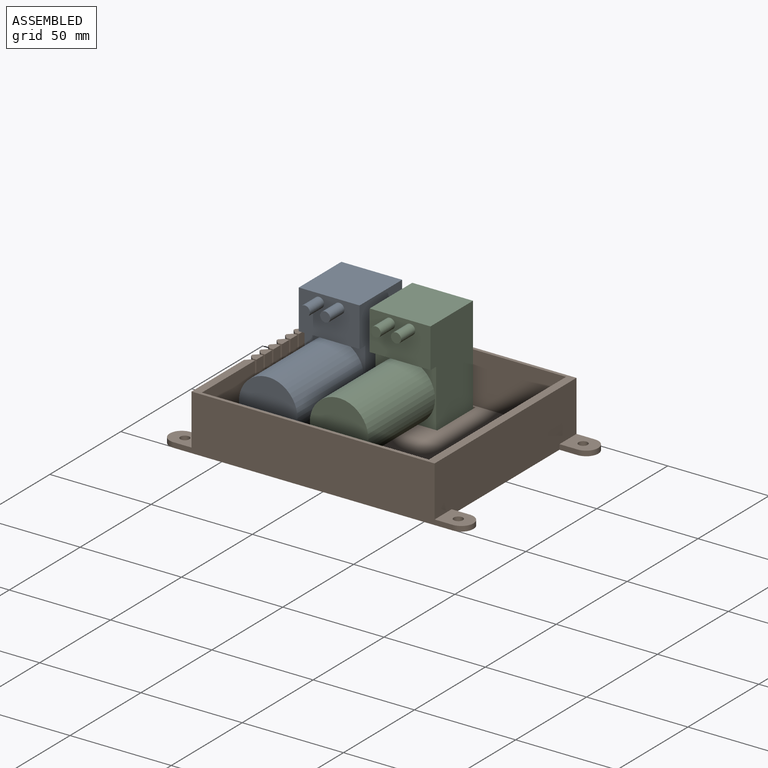
[diagram: assembled view]
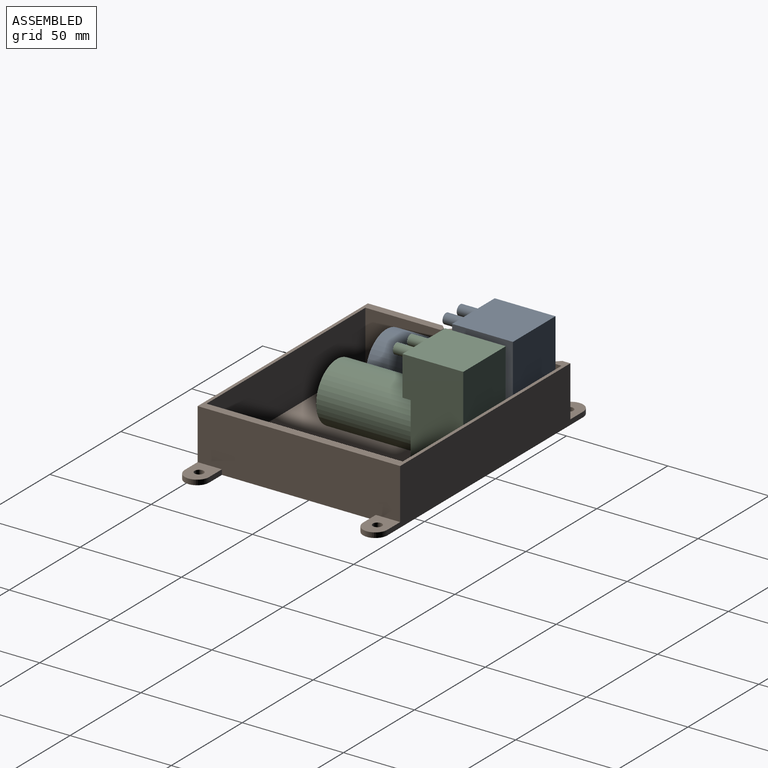
[diagram: assembled view, second angle]
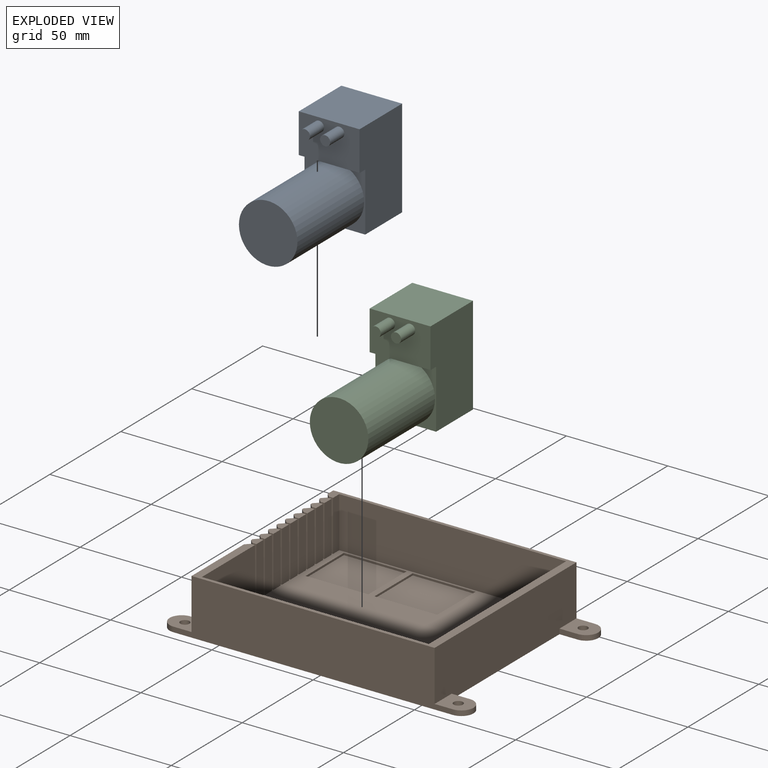
[diagram: exploded view]
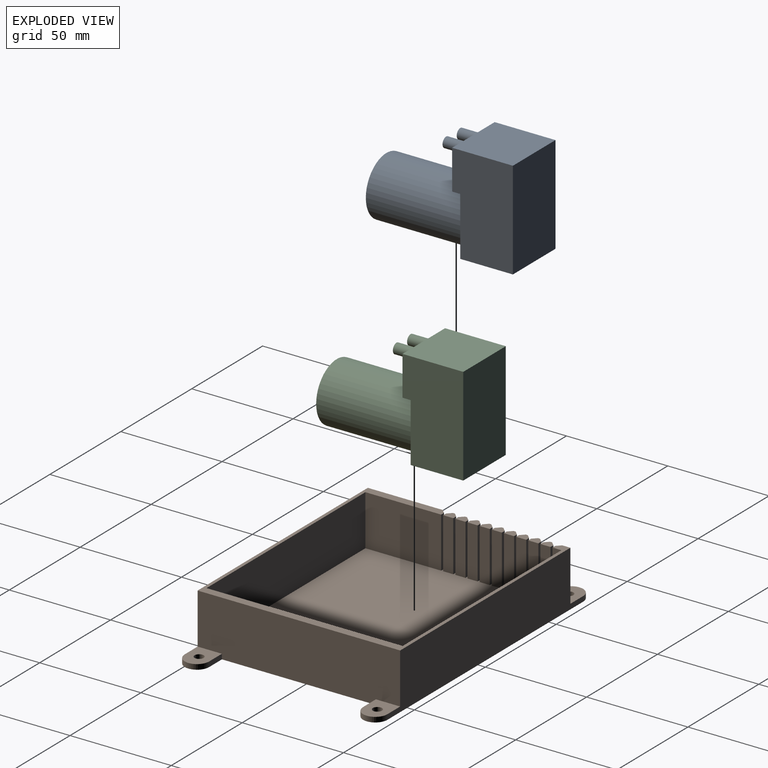
[diagram: exploded view, second angle]
ASSEMBLY  parts=3 mates=2
PART A: 14 faces, bbox 73x30x48.5 mm
  f0: plane 30x19.5mm, normal (-1,0,0), area 545.7mm2, adj f1,f3,f4,f7,f10,f12
  f1: plane 48.5x30mm, normal (0,-1,0), area 1339mm2, adj f0,f2,f4,f5,f6,f7
  f2: plane 48.5x30mm, normal (1,0,0), area 1455mm2, adj f1,f3,f4,f5
  f3: plane 48.5x30mm, normal (0,1,0), area 1339mm2, adj f0,f2,f4,f5,f6,f7
  f4: plane 30x30mm, normal (0,0,1), area 900mm2, adj f0,f1,f2,f3
  f5: plane 30x26mm, normal (0,0,-1), area 780mm2, adj f1,f2,f3,f6
  f6: plane 30x29mm, normal (-1,0,0), area 214mm2, adj f1,f3,f5,f7,f8
  f7: plane 30x4mm, normal (0,0,-1), area 120mm2, adj f0,f1,f3,f6
  f8: cylinder r=14.45mm len=47mm, axis (1,0,0), area 4267.2mm2, adj f6,f9
  f9: plane 28.9x28.9mm, normal (-1,0,0), area 656mm2, adj f8
  f10: cylinder r=2.5mm len=10mm, axis (1,0,0), area 157.1mm2, adj f0,f11
  f11: plane 5x5mm, normal (-1,0,0), area 19.6mm2, adj f10
  f12: cylinder r=2.5mm len=10mm, axis (1,0,0), area 157.1mm2, adj f0,f13
  f13: plane 5x5mm, normal (-1,0,0), area 19.6mm2, adj f12
PART B: 97 faces, bbox 150x100x27.5 mm
  f0: plane 5x4mm, normal (0,0,1), area 16mm2, adj f10,f13,f91,f92,f93,f94
  f1: plane 5x4mm, normal (0,0,1), area 16mm2, adj f11,f14,f87,f88,f89,f90
  f2: plane 5x4mm, normal (0,0,1), area 16mm2, adj f11,f15,f83,f84,f85,f86
  f3: plane 5x4mm, normal (0,0,1), area 16mm2, adj f11,f16,f79,f80,f81,f82
  f4: plane 5x4mm, normal (0,0,1), area 16mm2, adj f11,f17,f75,f76,f77,f78
  f5: plane 5x4mm, normal (0,0,1), area 16mm2, adj f11,f18,f71,f72,f73,f74
  f6: plane 5x4mm, normal (0,0,1), area 16mm2, adj f11,f19,f67,f68,f69,f70
  f7: plane 5x4mm, normal (0,0,1), area 16mm2, adj f11,f20,f63,f64,f65,f66
  f8: plane 5x4mm, normal (0,0,1), area 16mm2, adj f11,f21,f59,f60,f61,f62
  f9: plane 120x100mm, normal (0,0,1), area 934.4mm2, adj f11,f12,f22,f28,f30,f32,f43,f44
  f10: plane 25x1mm, normal (-1,0,0), area 25mm2, adj f0,f23,f91,f93
  f11: plane 88x27.5mm, normal (-1,0,0), area 1315mm2, adj f1,f2,f3,f4,f5,f6,f7,f8
  f12: plane 25x4mm, normal (-1,0,0), area 100mm2, adj f9,f23,f32,f95
  f13: plane 25x5mm, normal (1,0,0), area 125mm2, adj f0,f23,f92,f94
  f14: plane 25x5mm, normal (1,0,0), area 125mm2, adj f1,f23,f88,f89
  f15: plane 25x5mm, normal (1,0,0), area 125mm2, adj f2,f23,f84,f85
  f16: plane 25x5mm, normal (1,0,0), area 125mm2, adj f3,f23,f80,f81
  f17: plane 25x5mm, normal (1,0,0), area 125mm2, adj f4,f23,f76,f77
  f18: plane 25x5mm, normal (1,0,0), area 125mm2, adj f5,f23,f72,f73
  f19: plane 25x5mm, normal (1,0,0), area 125mm2, adj f6,f23,f68,f69
  f20: plane 25x5mm, normal (1,0,0), area 125mm2, adj f7,f23,f64,f65
  f21: plane 25x5mm, normal (1,0,0), area 125mm2, adj f8,f23,f60,f61
  f22: plane 37.4x25mm, normal (1,0,0), area 935mm2, adj f9,f23,f46,f57
  f23: plane 131x98.4mm, normal (0,0,1), area 9396.2mm2, adj f10,f11,f12,f13,f14,f15,f16,f17
  f24: plane 15x12mm, normal (0,0,1), area 148.6mm2, adj f30,f31,f32,f34,f41
  f25: plane 15x12mm, normal (0,0,1), area 148.6mm2, adj f28,f29,f30,f33,f40
  f26: plane 9x2.5mm, normal (0,-1,0), area 22.5mm2, adj f11,f23,f38,f42
  f27: plane 9x2.5mm, normal (0,1,0), area 22.5mm2, adj f11,f37,f38,f39
  f28: plane 138x27.5mm, normal (0,-1,0), area 3345mm2, adj f9,f11,f25,f30,f37,f38,f39,f40
  f29: plane 9x2.5mm, normal (0,1,0), area 22.5mm2, adj f25,f30,f38,f40
  f30: plane 100x27.5mm, normal (1,0,0), area 2690mm2, adj f9,f24,f25,f28,f29,f31,f32,f38
  f31: plane 9x2.5mm, normal (0,-1,0), area 22.5mm2, adj f24,f30,f38,f41
  f32: plane 138x27.5mm, normal (0,1,0), area 3345mm2, adj f9,f12,f23,f24,f30,f38,f41,f42
  f33: cylinder r=2.25mm len=4.5mm, axis (0,0,-1), area 35.3mm2, adj f25,f38
  f34: cylinder r=2.25mm len=4.5mm, axis (0,0,-1), area 35.3mm2, adj f24,f38
  f35: cylinder r=2.25mm len=4.5mm, axis (0,0,-1), area 35.3mm2, adj f23,f38
  f36: cylinder r=2.25mm len=4.5mm, axis (0,0,-1), area 35.3mm2, adj f37,f38
  f37: plane 15x12mm, normal (0,0,1), area 148.6mm2, adj f11,f27,f28,f36,f39
  f38: plane 150x100mm, normal (0,0,-1), area 12594.6mm2, adj f11,f26,f27,f28,f29,f30,f31,f32
  f39: cylinder r=6mm len=12mm, axis (0,0,-1), area 47.1mm2, adj f27,f28,f37,f38
  f40: cylinder r=6mm len=12mm, axis (0,0,1), area 47.1mm2, adj f25,f28,f29,f38
  f41: cylinder r=6mm len=12mm, axis (0,0,-1), area 47.1mm2, adj f24,f31,f32,f38
  f42: cylinder r=6mm len=12mm, axis (0,0,1), area 47.1mm2, adj f23,f26,f32,f38
  f43: plane 25x4.4mm, normal (1,0,0), area 110mm2, adj f9,f23,f44,f96
  f44: plane 112x25mm, normal (0,-1,0), area 2800mm2, adj f9,f23,f43,f45
  f45: plane 96.8x25mm, normal (-1,0,0), area 2420mm2, adj f9,f23,f44,f46
  f46: plane 112x25mm, normal (0,1,0), area 2800mm2, adj f9,f22,f23,f45
  f47: plane 31x1mm, normal (0,-1,0), area 31mm2, adj f23,f48,f50,f51
  f48: plane 27x1mm, normal (1,0,0), area 27mm2, adj f23,f47,f49,f51
  f49: plane 31x1mm, normal (0,1,0), area 31mm2, adj f23,f48,f50,f51
  f50: plane 27x1mm, normal (-1,0,0), area 27mm2, adj f23,f47,f49,f51
  f51: plane 31x27mm, normal (0,0,1), area 837mm2, adj f47,f48,f49,f50
  f52: plane 31x1mm, normal (0,-1,0), area 31mm2, adj f23,f53,f55,f56
  f53: plane 27x1mm, normal (1,0,0), area 27mm2, adj f23,f52,f54,f56
  f54: plane 31x1mm, normal (0,1,0), area 31mm2, adj f23,f53,f55,f56
  f55: plane 27x1mm, normal (-1,0,0), area 27mm2, adj f23,f52,f54,f56
  f56: plane 31x27mm, normal (0,0,1), area 837mm2, adj f52,f53,f54,f55
  f57: plane 25x2mm, normal (0,1,0), area 50mm2, adj f9,f22,f23,f58
  f58: plane 25x2mm, normal (-0.71,0.71,0), area 70.7mm2, adj f9,f11,f23,f57
  f59: plane 25x2mm, normal (-0.71,-0.71,0), area 70.7mm2, adj f8,f11,f23,f60
  f60: plane 25x2mm, normal (0,-1,0), area 50mm2, adj f8,f21,f23,f59
  f61: plane 25x2mm, normal (0,1,0), area 50mm2, adj f8,f21,f23,f62
  f62: plane 25x2mm, normal (-0.71,0.71,0), area 70.7mm2, adj f8,f11,f23,f61
  f63: plane 25x2mm, normal (-0.71,-0.71,0), area 70.7mm2, adj f7,f11,f23,f64
  f64: plane 25x2mm, normal (0,-1,0), area 50mm2, adj f7,f20,f23,f63
  f65: plane 25x2mm, normal (0,1,0), area 50mm2, adj f7,f20,f23,f66
  f66: plane 25x2mm, normal (-0.71,0.71,0), area 70.7mm2, adj f7,f11,f23,f65
  f67: plane 25x2mm, normal (-0.71,-0.71,0), area 70.7mm2, adj f6,f11,f23,f68
  f68: plane 25x2mm, normal (0,-1,0), area 50mm2, adj f6,f19,f23,f67
  f69: plane 25x2mm, normal (0,1,0), area 50mm2, adj f6,f19,f23,f70
  f70: plane 25x2mm, normal (-0.71,0.71,0), area 70.7mm2, adj f6,f11,f23,f69
  f71: plane 25x2mm, normal (-0.71,-0.71,0), area 70.7mm2, adj f5,f11,f23,f72
  f72: plane 25x2mm, normal (0,-1,0), area 50mm2, adj f5,f18,f23,f71
  f73: plane 25x2mm, normal (0,1,0), area 50mm2, adj f5,f18,f23,f74
  f74: plane 25x2mm, normal (-0.71,0.71,0), area 70.7mm2, adj f5,f11,f23,f73
  f75: plane 25x2mm, normal (-0.71,-0.71,0), area 70.7mm2, adj f4,f11,f23,f76
  f76: plane 25x2mm, normal (0,-1,0), area 50mm2, adj f4,f17,f23,f75
  f77: plane 25x2mm, normal (0,1,0), area 50mm2, adj f4,f17,f23,f78
  f78: plane 25x2mm, normal (-0.71,0.71,0), area 70.7mm2, adj f4,f11,f23,f77
  f79: plane 25x2mm, normal (-0.71,-0.71,0), area 70.7mm2, adj f3,f11,f23,f80
  f80: plane 25x2mm, normal (0,-1,0), area 50mm2, adj f3,f16,f23,f79
  f81: plane 25x2mm, normal (0,1,0), area 50mm2, adj f3,f16,f23,f82
  f82: plane 25x2mm, normal (-0.71,0.71,0), area 70.7mm2, adj f3,f11,f23,f81
  f83: plane 25x2mm, normal (-0.71,-0.71,0), area 70.7mm2, adj f2,f11,f23,f84
  f84: plane 25x2mm, normal (0,-1,0), area 50mm2, adj f2,f15,f23,f83
  f85: plane 25x2mm, normal (0,1,0), area 50mm2, adj f2,f15,f23,f86
  f86: plane 25x2mm, normal (-0.71,0.71,0), area 70.7mm2, adj f2,f11,f23,f85
  f87: plane 25x2mm, normal (-0.71,-0.71,0), area 70.7mm2, adj f1,f11,f23,f88
  f88: plane 25x2mm, normal (0,-1,0), area 50mm2, adj f1,f14,f23,f87
  f89: plane 25x2mm, normal (0,1,0), area 50mm2, adj f1,f14,f23,f90
  f90: plane 25x2mm, normal (-0.71,0.71,0), area 70.7mm2, adj f1,f11,f23,f89
  f91: plane 25x2mm, normal (-0.71,-0.71,0), area 70.7mm2, adj f0,f10,f23,f92
  f92: plane 25x2mm, normal (0,-1,0), area 50mm2, adj f0,f13,f23,f91
  f93: plane 25x2mm, normal (-0.71,0.71,0), area 70.7mm2, adj f0,f10,f23,f94
  f94: plane 25x2mm, normal (0,1,0), area 50mm2, adj f0,f13,f23,f93
  f95: plane 25x2mm, normal (-0.71,-0.71,0), area 70.7mm2, adj f9,f12,f23,f96
  f96: plane 25x2mm, normal (0,-1,0), area 50mm2, adj f9,f23,f43,f95
PART C: same geometry as A
PLACE A rot(axis=(0,0,1),90deg) t=(-38.9,31.9,1.5)mm
PLACE B at identity
PLACE C rot(axis=(0,0,1),90deg) t=(-3.9,31.9,1.5)mm
MATE planar A.f5 <-> B.f56  axis (0,0,-1) through (-38.9,33.9,1.5)mm
MATE planar C.f5 <-> B.f51  axis (0,0,-1) through (-3.9,33.9,1.5)mm
